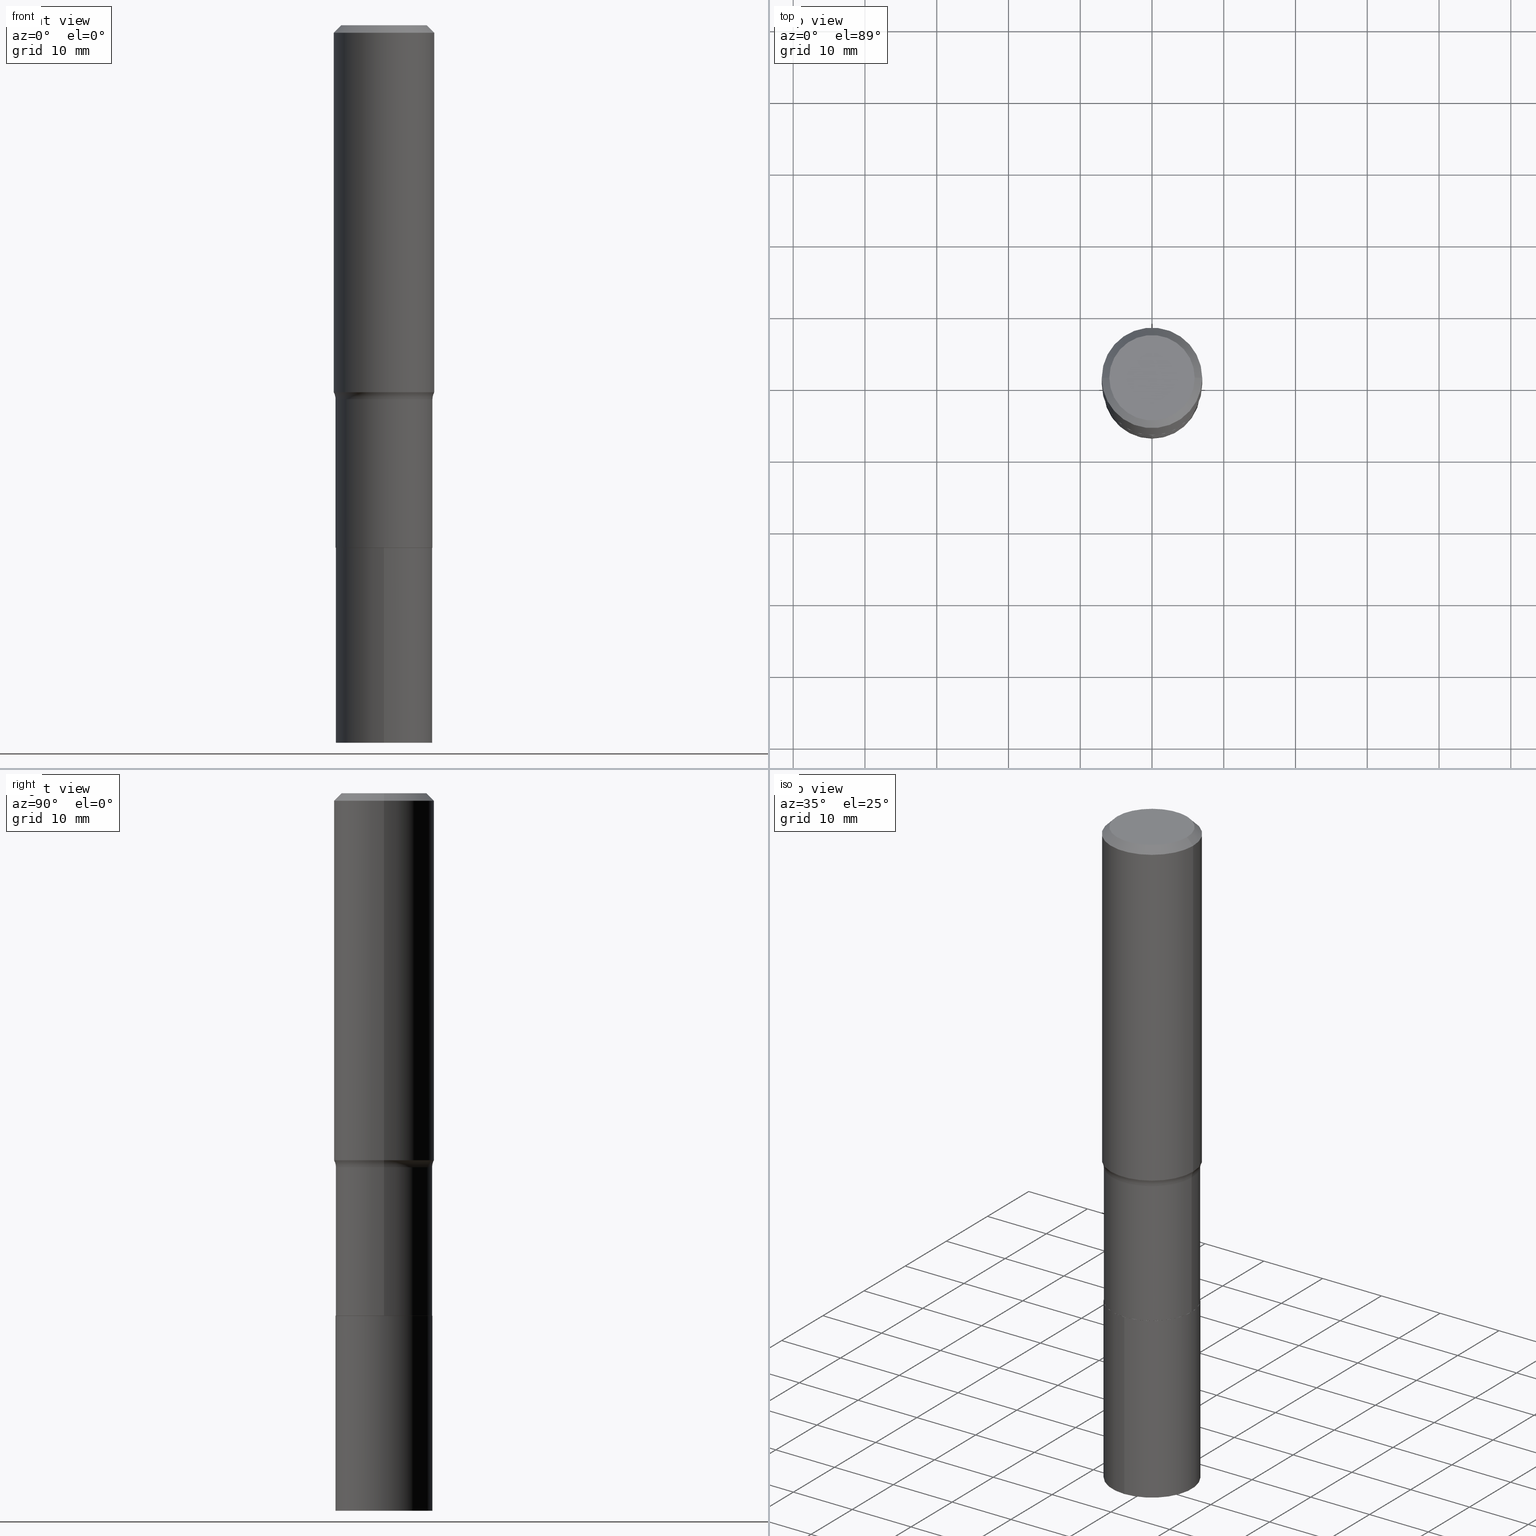
[diagram: canonical four-view strip — front | top / right | iso, engineering-drawing reading convention]
A machine part, canonical four-view strip (front | top / right | iso — engineering-drawing reading convention). The complete STEP part file that produces these views, byte-faithful:
ISO-10303-21;
HEADER;
FILE_DESCRIPTION (( 'STEP AP203' ),
    '1' );
FILE_NAME ('67171.STEP',
    '2024-04-19T16:08:07',
    ( '' ),
    ( '' ),
    'SwSTEP 2.0',
    'SolidWorks 2023',
    '' );
FILE_SCHEMA (( 'CONFIG_CONTROL_DESIGN' ));
ENDSEC;

DATA;
#1 = DIRECTION ( 'NONE',  ( -2.445918634677029817E-29, 3.490837158840106118E-15, 1.000000000000000000 ) ) ;
#2 = DATE_AND_TIME ( #396, #314 ) ;
#3 = ADVANCED_FACE ( 'NONE', ( #160 ), #353, .T. ) ;
#4 = CIRCLE ( 'NONE', #113, 0.2342600000000000238 ) ;
#5 = EDGE_LOOP ( 'NONE', ( #92, #296, #54, #59 ) ) ;
#6 = DIRECTION ( 'NONE',  ( -6.982962677686266711E-15, -1.000000000000000000, 4.111906669673397387E-15 ) ) ;
#7 = VERTEX_POINT ( 'NONE', #83 ) ;
#8 = ADVANCED_FACE ( 'NONE', ( #269 ), #318, .F. ) ;
#9 =( CONVERSION_BASED_UNIT ( 'INCH', #338 ) LENGTH_UNIT ( ) NAMED_UNIT ( #93 ) );
#10 = COORDINATED_UNIVERSAL_TIME_OFFSET ( 5, 0, .BEHIND. ) ;
#11 = CONICAL_SURFACE ( 'NONE', #313, 0.2652499999999999858, 0.7853981633967311859 ) ;
#12 = ORGANIZATION ( 'UNSPECIFIED', 'UNSPECIFIED', '' ) ;
#13 = DATE_AND_TIME ( #272, #211 ) ;
#14 = DIRECTION ( 'NONE',  ( 2.445468806185136597E-29, -3.491481338843145583E-15, -1.000000000000000000 ) ) ;
#15 = DIRECTION ( 'NONE',  ( 1.000000000000000000, -6.982962677686266711E-15, 0.000000000000000000 ) ) ;
#16 = ORIENTED_EDGE ( 'NONE', *, *, #213, .T. ) ;
#17 = CARTESIAN_POINT ( 'NONE',  ( 0.000000000000000000, 0.000000000000000000, 0.000000000000000000 ) ) ;
#18 = ORIENTED_EDGE ( 'NONE', *, *, #323, .T. ) ;
#19 = AXIS2_PLACEMENT_3D ( 'NONE', #61, #66, #203 ) ;
#20 = CC_DESIGN_APPROVAL ( #38, ( #41 ) ) ;
#21 = APPLICATION_PROTOCOL_DEFINITION ( 'international standard', 'config_control_design', 1994, #117 ) ;
#22 = CARTESIAN_POINT ( 'NONE',  ( -0.2756000000000002892, -5.073037810357367887E-15, -2.013842523483722502 ) ) ;
#23 = DIRECTION ( 'NONE',  ( -2.445468806185136597E-29, 3.491481338843145583E-15, 1.000000000000000000 ) ) ;
#24 = EDGE_CURVE ( 'NONE', #280, #145, #406, .T. ) ;
#25 = PLANE ( 'NONE',  #165 ) ;
#26 = CARTESIAN_POINT ( 'NONE',  ( -5.014852121625167883E-47, 7.159879756154482429E-33, 2.050671065172242981E-18 ) ) ;
#27 = DIRECTION ( 'NONE',  ( -2.445468806185136597E-29, 3.491481338843145583E-15, 1.000000000000000000 ) ) ;
#28 = DIRECTION ( 'NONE',  ( -2.445468806185136597E-29, 3.491481338843145583E-15, 1.000000000000000000 ) ) ;
#29 = AXIS2_PLACEMENT_3D ( 'NONE', #397, #76, #401 ) ;
#30 = CYLINDRICAL_SURFACE ( 'NONE', #19, 0.2657499999999999862 ) ;
#31 = ADVANCED_FACE ( 'NONE', ( #320 ), #294, .T. ) ;
#32 = DIRECTION ( 'NONE',  ( -2.445468806185136597E-29, 3.491481338843145583E-15, 1.000000000000000000 ) ) ;
#33 = CC_DESIGN_PERSON_AND_ORGANIZATION_ASSIGNMENT ( #400, #291, ( #41 ) ) ;
#34 = PERSON_AND_ORGANIZATION ( #277, #12 ) ;
#35 = AXIS2_PLACEMENT_3D ( 'NONE', #329, #133, #167 ) ;
#36 = CARTESIAN_POINT ( 'NONE',  ( -1.002970424325033577E-46, 1.431975951230896486E-32, 4.101342130344485961E-18 ) ) ;
#37 = ADVANCED_FACE ( 'NONE', ( #385 ), #202, .T. ) ;
#38 = APPROVAL ( #177, 'UNSPECIFIED' ) ;
#39 = VERTEX_POINT ( 'NONE', #462 ) ;
#40 = AXIS2_PLACEMENT_3D ( 'NONE', #357, #28, #324 ) ;
#41 = PRODUCT_DEFINITION_FORMATION_WITH_SPECIFIED_SOURCE ( 'ANY', '', #283, .NOT_KNOWN. ) ;
#42 = EDGE_CURVE ( 'NONE', #86, #45, #431, .T. ) ;
#43 = ORIENTED_EDGE ( 'NONE', *, *, #94, .F. ) ;
#44 = EDGE_LOOP ( 'NONE', ( #335, #438 ) ) ;
#45 = VERTEX_POINT ( 'NONE', #204 ) ;
#46 = EDGE_LOOP ( 'NONE', ( #452, #74 ) ) ;
#47 = VECTOR ( 'NONE', #281, 39.37007874015748143 ) ;
#48 = APPROVAL_PERSON_ORGANIZATION ( #182, #38, #439 ) ;
#49 = CARTESIAN_POINT ( 'NONE',  ( 7.008713598526600652E-29, -1.000658551712445604E-14, -2.866000000000000103 ) ) ;
#50 = VERTEX_POINT ( 'NONE', #360 ) ;
#51 = CARTESIAN_POINT ( 'NONE',  ( 0.2342600000000000238, -1.821115673845785155E-15, 4.101342130356573868E-18 ) ) ;
#52 = ORIENTED_EDGE ( 'NONE', *, *, #102, .T. ) ;
#53 = CYLINDRICAL_SURFACE ( 'NONE', #130, 0.2756000000000001227 ) ;
#54 = ORIENTED_EDGE ( 'NONE', *, *, #343, .T. ) ;
#55 = AXIS2_PLACEMENT_3D ( 'NONE', #359, #361, #248 ) ;
#56 = CARTESIAN_POINT ( 'NONE',  ( 0.2652499999999999858, -1.185881636738073996E-14, -2.866000000000000547 ) ) ;
#57 = VERTEX_POINT ( 'NONE', #147 ) ;
#58 = FACE_OUTER_BOUND ( 'NONE', #271, .T. ) ;
#59 = ORIENTED_EDGE ( 'NONE', *, *, #162, .T. ) ;
#60 = EDGE_CURVE ( 'NONE', #57, #216, #98, .T. ) ;
#61 = CARTESIAN_POINT ( 'NONE',  ( 7.008713598526600652E-29, -1.000658551712445604E-14, -2.866000000000000103 ) ) ;
#62 = CIRCLE ( 'NONE', #434, 0.2657499999999999862 ) ;
#63 = DIRECTION ( 'NONE',  ( 1.000000000000000000, -6.982962677686268288E-15, 4.883557194083113462E-29 ) ) ;
#64 = DATE_TIME_ROLE ( 'classification_date' ) ;
#65 = LINE ( 'NONE', #428, #441 ) ;
#66 = DIRECTION ( 'NONE',  ( -2.445918634677030097E-29, 3.490837158840106118E-15, 1.000000000000000000 ) ) ;
#67 = AXIS2_PLACEMENT_3D ( 'NONE', #447, #23, #157 ) ;
#68 = CARTESIAN_POINT ( 'NONE',  ( 7.008713598526602894E-29, -1.000658551712445762E-14, -2.866000000000000547 ) ) ;
#69 = PRODUCT_RELATED_PRODUCT_CATEGORY ( 'detail', '', ( #283 ) ) ;
#70 = PERSON_AND_ORGANIZATION_ROLE ( 'creator' ) ;
#71 = ORIENTED_EDGE ( 'NONE', *, *, #116, .T. ) ;
#72 = APPLICATION_PROTOCOL_DEFINITION ( 'international standard', 'config_control_design', 1994, #180 ) ;
#73 = ADVANCED_FACE ( 'NONE', ( #300 ), #154, .T. ) ;
#74 = ORIENTED_EDGE ( 'NONE', *, *, #334, .T. ) ;
#75 = APPROVAL_DATE_TIME ( #2, #38 ) ;
#76 = DIRECTION ( 'NONE',  ( -2.445468806185136597E-29, 3.491481338843145583E-15, 1.000000000000000000 ) ) ;
#77 = CIRCLE ( 'NONE', #287, 0.2657499999999999862 ) ;
#78 = EDGE_LOOP ( 'NONE', ( #230, #18, #254, #192 ) ) ;
#79 = ORIENTED_EDGE ( 'NONE', *, *, #24, .F. ) ;
#80 = DIRECTION ( 'NONE',  ( -1.000000000000000000, 6.982962677686267499E-15, 0.000000000000000000 ) ) ;
#81 = VECTOR ( 'NONE', #201, 39.37007874015748143 ) ;
#82 = VERTEX_POINT ( 'NONE', #51 ) ;
#83 = CARTESIAN_POINT ( 'NONE',  ( 0.2652499999999999858, -1.185881636738073996E-14, -2.866000000000000547 ) ) ;
#84 = EDGE_CURVE ( 'NONE', #164, #86, #270, .T. ) ;
#85 = DIRECTION ( 'NONE',  ( -2.445468806185136597E-29, 3.491481338843145583E-15, 1.000000000000000000 ) ) ;
#86 = VERTEX_POINT ( 'NONE', #374 ) ;
#87 = CARTESIAN_POINT ( 'NONE',  ( -0.2756000000000000116, -1.629559934575154235E-15, -0.04134000000000025848 ) ) ;
#88 = VERTEX_POINT ( 'NONE', #87 ) ;
#89 = CLOSED_SHELL ( 'NONE', ( #257, #176, #297, #240, #37, #3, #217, #152, #31, #8, #123, #73 ) ) ;
#90 = AXIS2_PLACEMENT_3D ( 'NONE', #457, #410, #228 ) ;
#91 = DIRECTION ( 'NONE',  ( 0.7071067811860403118, -2.468850131076945266E-15, 0.7071067811870545006 ) ) ;
#92 = ORIENTED_EDGE ( 'NONE', *, *, #349, .F. ) ;
#93 = DIMENSIONAL_EXPONENTS ( 1.000000000000000000, 0.000000000000000000, 0.000000000000000000, 0.000000000000000000, 0.000000000000000000, 0.000000000000000000, 0.000000000000000000 ) ;
#94 = EDGE_CURVE ( 'NONE', #7, #119, #191, .T. ) ;
#95 = CARTESIAN_POINT ( 'NONE',  ( 9.628292456265704301E-29, -1.374527211424221215E-14, -3.937000000000001165 ) ) ;
#96 = DIRECTION ( 'NONE',  ( -6.982962677686266711E-15, -1.000000000000000000, 4.111906669673397387E-15 ) ) ;
#97 = DIRECTION ( 'NONE',  ( 1.000000000000000000, -6.982962677686265922E-15, 0.000000000000000000 ) ) ;
#98 = CIRCLE ( 'NONE', #368, 0.2756000000000002892 ) ;
#99 = SECURITY_CLASSIFICATION ( '', '', #430 ) ;
#100 = DIRECTION ( 'NONE',  ( -2.445468806185136597E-29, 3.491481338843145583E-15, 1.000000000000000000 ) ) ;
#101 = CYLINDRICAL_SURFACE ( 'NONE', #426, 0.2756000000000001227 ) ;
#102 = EDGE_CURVE ( 'NONE', #45, #86, #62, .T. ) ;
#103 = DIRECTION ( 'NONE',  ( -2.445468806185136877E-29, 3.491481338843145188E-15, 1.000000000000000000 ) ) ;
#104 = MANIFOLD_SOLID_BREP ( 'Body-Move/Copy2[1]', #105 ) ;
#105 = CLOSED_SHELL ( 'NONE', ( #307, #273, #409, #200 ) ) ;
#106 = CIRCLE ( 'NONE', #369, 0.2756000000000000116 ) ;
#107 =( GEOMETRIC_REPRESENTATION_CONTEXT ( 3 ) GLOBAL_UNCERTAINTY_ASSIGNED_CONTEXT ( ( #311 ) ) GLOBAL_UNIT_ASSIGNED_CONTEXT ( ( #9, #178, #144 ) ) REPRESENTATION_CONTEXT ( 'NONE', 'WORKASPACE' ) );
#108 = EDGE_CURVE ( 'NONE', #280, #7, #432, .T. ) ;
#109 = ORIENTED_EDGE ( 'NONE', *, *, #372, .F. ) ;
#110 = CC_DESIGN_PERSON_AND_ORGANIZATION_ASSIGNMENT ( #34, #70, ( #394 ) ) ;
#111 = CARTESIAN_POINT ( 'NONE',  ( 7.008713598526600652E-29, -1.000658551712445604E-14, -2.866000000000000103 ) ) ;
#112 = ORIENTED_EDGE ( 'NONE', *, *, #456, .F. ) ;
#113 = AXIS2_PLACEMENT_3D ( 'NONE', #36, #390, #206 ) ;
#114 = CC_DESIGN_APPROVAL ( #173, ( #394 ) ) ;
#115 = ORIENTED_EDGE ( 'NONE', *, *, #363, .T. ) ;
#116 = EDGE_CURVE ( 'NONE', #57, #50, #278, .T. ) ;
#117 = APPLICATION_CONTEXT ( 'configuration controlled 3d designs of mechanical parts and assemblies' ) ;
#118 = DIRECTION ( 'NONE',  ( -2.445468806185136597E-29, 3.491481338843145583E-15, 1.000000000000000000 ) ) ;
#119 = VERTEX_POINT ( 'NONE', #148 ) ;
#120 = CARTESIAN_POINT ( 'NONE',  ( 0.000000000000000000, 0.000000000000000000, 0.000000000000000000 ) ) ;
#121 = DIRECTION ( 'NONE',  ( -2.445468806185136597E-29, 3.491481338843145583E-15, 1.000000000000000000 ) ) ;
#122 = ORIENTED_EDGE ( 'NONE', *, *, #244, .T. ) ;
#123 = ADVANCED_FACE ( 'NONE', ( #128 ), #25, .F. ) ;
#124 = CARTESIAN_POINT ( 'NONE',  ( 0.2756000000000001227, -1.924504513970336137E-15, 1.343874319409360548E-29 ) ) ;
#125 = EDGE_LOOP ( 'NONE', ( #455, #440, #151, #43 ) ) ;
#126 = FACE_OUTER_BOUND ( 'NONE', #5, .T. ) ;
#127 = DIRECTION ( 'NONE',  ( 2.438088387897960049E-29, -3.491481338843145188E-15, -1.000000000000000000 ) ) ;
#128 = FACE_OUTER_BOUND ( 'NONE', #44, .T. ) ;
#129 = DIRECTION ( 'NONE',  ( -1.000000000000000000, 6.982962677686267499E-15, 0.000000000000000000 ) ) ;
#130 = AXIS2_PLACEMENT_3D ( 'NONE', #17, #274, #415 ) ;
#131 = CARTESIAN_POINT ( 'NONE',  ( -0.2756000000000001227, 1.958255779754836984E-15, -1.355658510874252567E-29 ) ) ;
#132 = ORIENTED_EDGE ( 'NONE', *, *, #84, .F. ) ;
#133 = DIRECTION ( 'NONE',  ( 7.105427357601001859E-15, 1.000000000000000000, -3.491481338843145583E-15 ) ) ;
#134 = FACE_OUTER_BOUND ( 'NONE', #339, .T. ) ;
#135 = APPROVAL_STATUS ( 'not_yet_approved' ) ;
#136 = AXIS2_PLACEMENT_3D ( 'NONE', #317, #454, #63 ) ;
#137 = FACE_OUTER_BOUND ( 'NONE', #78, .T. ) ;
#138 = DIRECTION ( 'NONE',  ( 1.000000000000000000, -6.982962677686267499E-15, 4.876176775795935793E-29 ) ) ;
#139 = CARTESIAN_POINT ( 'NONE',  ( 4.924789071748601638E-29, -7.031293590112206054E-15, -2.013842523483722502 ) ) ;
#140 = VECTOR ( 'NONE', #234, 39.37007874015748143 ) ;
#141 = VERTEX_POINT ( 'NONE', #443 ) ;
#142 = DIRECTION ( 'NONE',  ( -2.445468806185136597E-29, 3.491481338843145583E-15, 1.000000000000000000 ) ) ;
#143 = EDGE_LOOP ( 'NONE', ( #215, #122, #308, #109 ) ) ;
#144 =( NAMED_UNIT ( * ) SI_UNIT ( $, .STERADIAN. ) SOLID_ANGLE_UNIT ( ) );
#145 = VERTEX_POINT ( 'NONE', #197 ) ;
#146 = EDGE_CURVE ( 'NONE', #119, #145, #77, .T. ) ;
#147 = CARTESIAN_POINT ( 'NONE',  ( 0.2756000000000002892, -8.955798104082544164E-15, -2.013842523483722502 ) ) ;
#148 = CARTESIAN_POINT ( 'NONE',  ( 0.2657499999999999862, -1.186056210805015752E-14, -2.865499999999999936 ) ) ;
#149 = ORIENTED_EDGE ( 'NONE', *, *, #251, .T. ) ;
#150 = DIRECTION ( 'NONE',  ( 1.000000000000000000, -6.982962677686265922E-15, 0.000000000000000000 ) ) ;
#151 = ORIENTED_EDGE ( 'NONE', *, *, #146, .F. ) ;
#152 = ADVANCED_FACE ( 'NONE', ( #421 ), #53, .T. ) ;
#153 = CARTESIAN_POINT ( 'NONE',  ( 5.018835630933755677E-29, -7.165567151707788327E-15, -2.052300000000000235 ) ) ;
#154 = CONICAL_SURFACE ( 'NONE', #266, 0.2652499999999999858, 0.7853981633967311859 ) ;
#155 = EDGE_LOOP ( 'NONE', ( #444, #403, #71, #112 ) ) ;
#156 = CARTESIAN_POINT ( 'NONE',  ( 4.924789071748601638E-29, -7.031293590112206054E-15, -2.013842523483722502 ) ) ;
#157 = DIRECTION ( 'NONE',  ( 1.000000000000000000, -6.982962677686265133E-15, 4.876176775795935232E-29 ) ) ;
#158 = CALENDAR_DATE ( 2024, 19, 4 ) ;
#159 = CARTESIAN_POINT ( 'NONE',  ( 7.008713598526602894E-29, -1.000658551712445762E-14, -2.866000000000000547 ) ) ;
#160 = FACE_OUTER_BOUND ( 'NONE', #275, .T. ) ;
#161 = DATE_AND_TIME ( #158, #205 ) ;
#162 = EDGE_CURVE ( 'NONE', #383, #436, #365, .T. ) ;
#163 = DIRECTION ( 'NONE',  ( 1.000000000000000000, -6.982962677686268288E-15, 4.883557194083113462E-29 ) ) ;
#164 = VERTEX_POINT ( 'NONE', #309 ) ;
#165 = AXIS2_PLACEMENT_3D ( 'NONE', #345, #241, #306 ) ;
#166 = COORDINATED_UNIVERSAL_TIME_OFFSET ( 5, 0, .BEHIND. ) ;
#167 = DIRECTION ( 'NONE',  ( -1.000000000000000000, 7.105427357601001859E-15, 0.000000000000000000 ) ) ;
#168 = PLANE ( 'NONE',  #408 ) ;
#169 = EDGE_CURVE ( 'NONE', #7, #280, #226, .T. ) ;
#170 = CALENDAR_DATE ( 2024, 19, 4 ) ;
#171 = CARTESIAN_POINT ( 'NONE',  ( -1.676611901339251534E-29, -2.993453858952963393E-14, -3.937000000000000721 ) ) ;
#172 = AXIS2_PLACEMENT_3D ( 'NONE', #362, #209, #391 ) ;
#173 = APPROVAL ( #233, 'UNSPECIFIED' ) ;
#174 = CIRCLE ( 'NONE', #29, 0.2756000000000000116 ) ;
#175 = CARTESIAN_POINT ( 'NONE',  ( 0.000000000000000000, 0.000000000000000000, 0.000000000000000000 ) ) ;
#176 = ADVANCED_FACE ( 'NONE', ( #58 ), #393, .T. ) ;
#177 = APPROVAL_STATUS ( 'not_yet_approved' ) ;
#178 =( NAMED_UNIT ( * ) PLANE_ANGLE_UNIT ( ) SI_UNIT ( $, .RADIAN. ) );
#179 = ORIENTED_EDGE ( 'NONE', *, *, #343, .F. ) ;
#180 = APPLICATION_CONTEXT ( 'configuration controlled 3d designs of mechanical parts and assemblies' ) ;
#181 = TOROIDAL_SURFACE ( 'NONE', #136, 0.3457499999999999463, 0.08000000000000002942 ) ;
#182 = PERSON_AND_ORGANIZATION ( #277, #12 ) ;
#183 = DIRECTION ( 'NONE',  ( -2.445918634677030097E-29, 3.490837158840106118E-15, 1.000000000000000000 ) ) ;
#184 = CARTESIAN_POINT ( 'NONE',  ( -0.2657499999999998752, -6.696936143798944498E-15, -2.052300000000000235 ) ) ;
#185 = ORIENTED_EDGE ( 'NONE', *, *, #402, .F. ) ;
#186 = AXIS2_PLACEMENT_3D ( 'NONE', #153, #85, #15 ) ;
#187 = EDGE_LOOP ( 'NONE', ( #422, #185 ) ) ;
#188 = EDGE_CURVE ( 'NONE', #39, #88, #315, .T. ) ;
#189 = CARTESIAN_POINT ( 'NONE',  ( 7.007490864123507851E-29, -1.000483977645503375E-14, -2.865499999999999936 ) ) ;
#190 = DIRECTION ( 'NONE',  ( 2.445468806185136597E-29, -3.491481338843145583E-15, -1.000000000000000000 ) ) ;
#191 = LINE ( 'NONE', #56, #341 ) ;
#192 = ORIENTED_EDGE ( 'NONE', *, *, #116, .F. ) ;
#193 = APPROVAL_ROLE ( '' ) ;
#194 = DIRECTION ( 'NONE',  ( -2.445468806185136597E-29, 3.491481338843145583E-15, 1.000000000000000000 ) ) ;
#195 = AXIS2_PLACEMENT_3D ( 'NONE', #156, #327, #364 ) ;
#196 = ORIENTED_EDGE ( 'NONE', *, *, #456, .T. ) ;
#197 = CARTESIAN_POINT ( 'NONE',  ( -0.2657500000000000417, -6.696936143798942920E-15, -2.865499999999999936 ) ) ;
#198 = ORIENTED_EDGE ( 'NONE', *, *, #188, .F. ) ;
#199 = PERSON_AND_ORGANIZATION_ROLE ( 'classification_officer' ) ;
#200 = ADVANCED_FACE ( 'NONE', ( #382 ), #379, .F. ) ;
#201 = DIRECTION ( 'NONE',  ( -2.445468806185136877E-29, 3.491481338843145188E-15, 1.000000000000000000 ) ) ;
#202 = CYLINDRICAL_SURFACE ( 'NONE', #40, 0.2657499999999999862 ) ;
#203 = DIRECTION ( 'NONE',  ( -6.982962677686266711E-15, -1.000000000000000000, 4.111906669673397387E-15 ) ) ;
#204 = CARTESIAN_POINT ( 'NONE',  ( 1.888267320282562387E-15, 0.2657499999999899942, -2.866000000000000991 ) ) ;
#205 = LOCAL_TIME ( 12, 8, 7.000000000000000000, #166 ) ;
#206 = DIRECTION ( 'NONE',  ( 1.000000000000000000, -6.982962677686267499E-15, 4.876157962347795834E-29 ) ) ;
#207 = DIRECTION ( 'NONE',  ( -2.445468806185136597E-29, 3.491481338843145583E-15, 1.000000000000000000 ) ) ;
#208 = SHAPE_DEFINITION_REPRESENTATION ( #414, #302 ) ;
#209 = DIRECTION ( 'NONE',  ( -6.982962677686266711E-15, -1.000000000000000000, 3.491481338843145583E-15 ) ) ;
#210 = CIRCLE ( 'NONE', #351, 0.2657499999999999862 ) ;
#211 = LOCAL_TIME ( 12, 8, 7.000000000000000000, #453 ) ;
#212 = DIRECTION ( 'NONE',  ( -6.982962677686266711E-15, -1.000000000000000000, 4.111906669673397387E-15 ) ) ;
#213 = EDGE_CURVE ( 'NONE', #145, #119, #210, .T. ) ;
#214 = CYLINDRICAL_SURFACE ( 'NONE', #295, 0.2657499999999999862 ) ;
#215 = ORIENTED_EDGE ( 'NONE', *, *, #146, .T. ) ;
#216 = VERTEX_POINT ( 'NONE', #22 ) ;
#217 = ADVANCED_FACE ( 'NONE', ( #126 ), #181, .F. ) ;
#218 = PERSON_AND_ORGANIZATION_ROLE ( 'creator' ) ;
#219 = FACE_OUTER_BOUND ( 'NONE', #398, .T. ) ;
#220 = ORIENTED_EDGE ( 'NONE', *, *, #349, .T. ) ;
#221 = CC_DESIGN_DATE_AND_TIME_ASSIGNMENT ( #298, #255, ( #394 ) ) ;
#222 = DIRECTION ( 'NONE',  ( 0.000000000000000000, 0.000000000000000000, 1.000000000000000000 ) ) ;
#223 = DESIGN_CONTEXT ( 'detailed design', #117, 'design' ) ;
#224 = EDGE_CURVE ( 'NONE', #216, #57, #449, .T. ) ;
#225 = DIRECTION ( 'NONE',  ( 1.000000000000000000, 0.000000000000000000, 0.000000000000000000 ) ) ;
#226 = CIRCLE ( 'NONE', #388, 0.2652499999999999858 ) ;
#227 = LOCAL_TIME ( 12, 8, 7.000000000000000000, #288 ) ;
#228 = DIRECTION ( 'NONE',  ( 6.982962677686265922E-15, 1.000000000000000000, -3.490837158840106118E-15 ) ) ;
#229 = APPROVAL_PERSON_ORGANIZATION ( #412, #173, #193 ) ;
#230 = ORIENTED_EDGE ( 'NONE', *, *, #60, .T. ) ;
#231 = CARTESIAN_POINT ( 'NONE',  ( -1.855722331595055138E-15, -0.2657500000000099782, -2.865999999999998771 ) ) ;
#232 = ORIENTED_EDGE ( 'NONE', *, *, #108, .T. ) ;
#233 = APPROVAL_STATUS ( 'not_yet_approved' ) ;
#234 = DIRECTION ( 'NONE',  ( -0.7071067811865452413, 2.468850131082233000E-15, -0.7071067811865497932 ) ) ;
#235 = ORIENTED_EDGE ( 'NONE', *, *, #425, .T. ) ;
#236 = DIRECTION ( 'NONE',  ( -2.445918634677030097E-29, 3.490837158840106118E-15, 1.000000000000000000 ) ) ;
#237 = CIRCLE ( 'NONE', #35, 0.08000000000000002942 ) ;
#238 = DIRECTION ( 'NONE',  ( -0.7071067811860403118, 7.493145998868519270E-15, 0.7071067811870545006 ) ) ;
#239 = CC_DESIGN_SECURITY_CLASSIFICATION ( #99, ( #41 ) ) ;
#240 = ADVANCED_FACE ( 'NONE', ( #427 ), #328, .F. ) ;
#241 = DIRECTION ( 'NONE',  ( -2.438088387897960049E-29, 3.491481338843145188E-15, 1.000000000000000000 ) ) ;
#242 = EDGE_LOOP ( 'NONE', ( #395, #404, #442, #196 ) ) ;
#243 = CARTESIAN_POINT ( 'NONE',  ( 5.018835630933755677E-29, -7.165567151707788327E-15, -2.052300000000000235 ) ) ;
#244 = EDGE_CURVE ( 'NONE', #145, #436, #65, .T. ) ;
#245 = DIRECTION ( 'NONE',  ( -2.445918634677029817E-29, 3.490837158840106118E-15, 1.000000000000000000 ) ) ;
#246 = AXIS2_PLACEMENT_3D ( 'NONE', #243, #27, #463 ) ;
#247 = CIRCLE ( 'NONE', #399, 0.2657499999999999862 ) ;
#248 = DIRECTION ( 'NONE',  ( 1.000000000000000000, -6.982962677686267499E-15, 4.876157962347795834E-29 ) ) ;
#249 = LINE ( 'NONE', #131, #467 ) ;
#250 = LINE ( 'NONE', #392, #47 ) ;
#251 = EDGE_CURVE ( 'NONE', #436, #383, #459, .T. ) ;
#252 = VECTOR ( 'NONE', #103, 39.37007874015748143 ) ;
#253 = CARTESIAN_POINT ( 'NONE',  ( 7.008713598526602894E-29, -1.000658551712445762E-14, -2.866000000000000547 ) ) ;
#254 = ORIENTED_EDGE ( 'NONE', *, *, #293, .F. ) ;
#255 = DATE_TIME_ROLE ( 'creation_date' ) ;
#256 = CARTESIAN_POINT ( 'NONE',  ( 9.628292456265704301E-29, -1.374527211424221215E-14, -3.937000000000001165 ) ) ;
#257 = ADVANCED_FACE ( 'NONE', ( #387 ), #11, .T. ) ;
#258 = ORIENTED_EDGE ( 'NONE', *, *, #293, .T. ) ;
#259 = PERSON_AND_ORGANIZATION ( #277, #12 ) ;
#260 = CIRCLE ( 'NONE', #55, 0.2342600000000000238 ) ;
#261 =( LENGTH_UNIT ( ) NAMED_UNIT ( * ) SI_UNIT ( $, .METRE. ) );
#262 = ORIENTED_EDGE ( 'NONE', *, *, #42, .F. ) ;
#263 = MANIFOLD_SOLID_BREP ( 'Body-Move/Copy2[2]', #89 ) ;
#264 = CARTESIAN_POINT ( 'NONE',  ( 7.008713598526602894E-29, -1.000658551712445762E-14, -2.866000000000000547 ) ) ;
#265 = ORIENTED_EDGE ( 'NONE', *, *, #224, .F. ) ;
#266 = AXIS2_PLACEMENT_3D ( 'NONE', #253, #347, #319 ) ;
#267 = CC_DESIGN_APPROVAL ( #413, ( #99 ) ) ;
#268 = CARTESIAN_POINT ( 'NONE',  ( 1.010956804476941872E-30, -1.443378385477765316E-16, -0.04134000000000025848 ) ) ;
#269 = FACE_OUTER_BOUND ( 'NONE', #46, .T. ) ;
#270 = LINE ( 'NONE', #231, #303 ) ;
#271 = EDGE_LOOP ( 'NONE', ( #348, #371, #258, #198 ) ) ;
#272 = CALENDAR_DATE ( 2024, 19, 4 ) ;
#273 = ADVANCED_FACE ( 'NONE', ( #321 ), #168, .F. ) ;
#274 = DIRECTION ( 'NONE',  ( -2.445468806185136597E-29, 3.491481338843145583E-15, 1.000000000000000000 ) ) ;
#275 = EDGE_LOOP ( 'NONE', ( #355, #16, #344, #337 ) ) ;
#276 = DATE_AND_TIME ( #170, #227 ) ;
#277 = PERSON ( 'UNSPECIFIED', 'UNSPECIFIED', 'UNSPECIFIED', ('UNSPECIFIED'), ('UNSPECIFIED'), ('UNSPECIFIED') ) ;
#278 = LINE ( 'NONE', #124, #81 ) ;
#279 = AXIS2_PLACEMENT_3D ( 'NONE', #264, #121, #384 ) ;
#280 = VERTEX_POINT ( 'NONE', #389 ) ;
#281 = DIRECTION ( 'NONE',  ( 0.7071067811865452413, -7.319954787623248157E-15, -0.7071067811865497932 ) ) ;
#282 = EDGE_CURVE ( 'NONE', #39, #82, #4, .T. ) ;
#283 = PRODUCT ( '67171', '67171', '', ( #445 ) ) ;
#284 = APPROVAL_DATE_TIME ( #276, #413 ) ;
#285 = CARTESIAN_POINT ( 'NONE',  ( 1.888267320282535960E-15, 0.2657499999999899942, -2.866000000000000991 ) ) ;
#286 = DIRECTION ( 'NONE',  ( -2.445468806185136877E-29, 3.491481338843145188E-15, 1.000000000000000000 ) ) ;
#287 = AXIS2_PLACEMENT_3D ( 'NONE', #354, #418, #377 ) ;
#288 = COORDINATED_UNIVERSAL_TIME_OFFSET ( 5, 0, .BEHIND. ) ;
#289 = DIRECTION ( 'NONE',  ( 1.000000000000000000, -6.982962677686267499E-15, 0.000000000000000000 ) ) ;
#290 = DIRECTION ( 'NONE',  ( -2.445918634677030097E-29, 3.490837158840106118E-15, 1.000000000000000000 ) ) ;
#291 = PERSON_AND_ORGANIZATION_ROLE ( 'design_supplier' ) ;
#292 = LINE ( 'NONE', #429, #252 ) ;
#293 = EDGE_CURVE ( 'NONE', #50, #88, #106, .T. ) ;
#294 = CONICAL_SURFACE ( 'NONE', #448, 0.2756000000000000116, 0.7853981633974450594 ) ;
#295 = AXIS2_PLACEMENT_3D ( 'NONE', #111, #435, #212 ) ;
#296 = ORIENTED_EDGE ( 'NONE', *, *, #60, .F. ) ;
#297 = ADVANCED_FACE ( 'NONE', ( #137 ), #101, .T. ) ;
#298 = DATE_AND_TIME ( #330, #304 ) ;
#299 = ORIENTED_EDGE ( 'NONE', *, *, #102, .F. ) ;
#300 = FACE_OUTER_BOUND ( 'NONE', #301, .T. ) ;
#301 = EDGE_LOOP ( 'NONE', ( #79, #232, #416, #310 ) ) ;
#302 = ADVANCED_BREP_SHAPE_REPRESENTATION ( '67171', ( #104, #263, #450 ), #107 ) ;
#303 = VECTOR ( 'NONE', #405, 39.37007874015748143 ) ;
#304 = LOCAL_TIME ( 12, 8, 7.000000000000000000, #333 ) ;
#305 = APPROVAL_DATE_TIME ( #13, #173 ) ;
#306 = DIRECTION ( 'NONE',  ( 1.000000000000000000, -6.982962677686265922E-15, 4.876176775795935793E-29 ) ) ;
#307 = ADVANCED_FACE ( 'NONE', ( #134 ), #30, .T. ) ;
#308 = ORIENTED_EDGE ( 'NONE', *, *, #162, .F. ) ;
#309 = CARTESIAN_POINT ( 'NONE',  ( -1.855722331595028711E-15, -0.2657500000000137530, -3.937000000000000277 ) ) ;
#310 = ORIENTED_EDGE ( 'NONE', *, *, #213, .F. ) ;
#311 = UNCERTAINTY_MEASURE_WITH_UNIT (LENGTH_MEASURE( 1.000000000000000082E-05 ), #9, 'distance_accuracy_value', 'NONE');
#312 = AXIS2_PLACEMENT_3D ( 'NONE', #332, #290, #96 ) ;
#313 = AXIS2_PLACEMENT_3D ( 'NONE', #68, #100, #97 ) ;
#314 = LOCAL_TIME ( 12, 8, 7.000000000000000000, #10 ) ;
#315 = LINE ( 'NONE', #451, #140 ) ;
#316 = ORIENTED_EDGE ( 'NONE', *, *, #402, .T. ) ;
#317 = CARTESIAN_POINT ( 'NONE',  ( 5.018835630933755677E-29, -7.165567151707788327E-15, -2.052300000000000235 ) ) ;
#318 = PLANE ( 'NONE',  #407 ) ;
#319 = DIRECTION ( 'NONE',  ( 1.000000000000000000, -6.982962677686265922E-15, 0.000000000000000000 ) ) ;
#320 = FACE_OUTER_BOUND ( 'NONE', #242, .T. ) ;
#321 = FACE_OUTER_BOUND ( 'NONE', #187, .T. ) ;
#322 = CIRCLE ( 'NONE', #373, 0.2657499999999999862 ) ;
#323 = EDGE_CURVE ( 'NONE', #216, #88, #249, .T. ) ;
#324 = DIRECTION ( 'NONE',  ( 1.000000000000000000, -6.982962677686265133E-15, 4.876176775795935232E-29 ) ) ;
#325 = APPROVAL_PERSON_ORGANIZATION ( #386, #413, #464 ) ;
#326 = CARTESIAN_POINT ( 'NONE',  ( 5.018835630933755677E-29, -7.165567151707788327E-15, -2.052300000000000235 ) ) ;
#327 = DIRECTION ( 'NONE',  ( -2.445468806185136597E-29, 3.491481338843145583E-15, 1.000000000000000000 ) ) ;
#328 = TOROIDAL_SURFACE ( 'NONE', #336, 0.3457499999999999463, 0.08000000000000002942 ) ;
#329 = CARTESIAN_POINT ( 'NONE',  ( -0.3457499999999999463, -4.708865642817241133E-15, -2.052300000000000235 ) ) ;
#330 = CALENDAR_DATE ( 2024, 19, 4 ) ;
#331 = CC_DESIGN_PERSON_AND_ORGANIZATION_ASSIGNMENT ( #417, #199, ( #99 ) ) ;
#332 = CARTESIAN_POINT ( 'NONE',  ( 7.008713598526600652E-29, -1.000658551712445604E-14, -2.866000000000000103 ) ) ;
#333 = COORDINATED_UNIVERSAL_TIME_OFFSET ( 5, 0, .BEHIND. ) ;
#334 = EDGE_CURVE ( 'NONE', #82, #39, #260, .T. ) ;
#335 = ORIENTED_EDGE ( 'NONE', *, *, #169, .F. ) ;
#336 = AXIS2_PLACEMENT_3D ( 'NONE', #326, #207, #163 ) ;
#337 = ORIENTED_EDGE ( 'NONE', *, *, #251, .F. ) ;
#338 = LENGTH_MEASURE_WITH_UNIT ( LENGTH_MEASURE( 0.02539999999999999897 ), #261 );
#339 = EDGE_LOOP ( 'NONE', ( #235, #115, #262, #132 ) ) ;
#340 = VECTOR ( 'NONE', #238, 39.37007874015748854 ) ;
#341 = VECTOR ( 'NONE', #91, 39.37007874015748854 ) ;
#342 = PERSON_AND_ORGANIZATION_ROLE ( 'design_owner' ) ;
#343 = EDGE_CURVE ( 'NONE', #57, #383, #381, .T. ) ;
#344 = ORIENTED_EDGE ( 'NONE', *, *, #372, .T. ) ;
#345 = CARTESIAN_POINT ( 'NONE',  ( 2.886342919033864303E-29, -1.591005496092598834E-14, -2.866000000000000547 ) ) ;
#346 = ORIENTED_EDGE ( 'NONE', *, *, #363, .F. ) ;
#347 = DIRECTION ( 'NONE',  ( -2.445468806185136597E-29, 3.491481338843145583E-15, 1.000000000000000000 ) ) ;
#348 = ORIENTED_EDGE ( 'NONE', *, *, #334, .F. ) ;
#349 = EDGE_CURVE ( 'NONE', #216, #436, #237, .T. ) ;
#350 = PERSON_AND_ORGANIZATION ( #277, #12 ) ;
#351 = AXIS2_PLACEMENT_3D ( 'NONE', #189, #194, #352 ) ;
#352 = DIRECTION ( 'NONE',  ( 1.000000000000000000, -6.982962677686264344E-15, 0.000000000000000000 ) ) ;
#353 = CYLINDRICAL_SURFACE ( 'NONE', #67, 0.2657499999999999862 ) ;
#354 = CARTESIAN_POINT ( 'NONE',  ( 7.007490864123507851E-29, -1.000483977645503375E-14, -2.865499999999999936 ) ) ;
#355 = ORIENTED_EDGE ( 'NONE', *, *, #244, .F. ) ;
#356 = LINE ( 'NONE', #285, #420 ) ;
#357 = CARTESIAN_POINT ( 'NONE',  ( 0.000000000000000000, 0.000000000000000000, 0.000000000000000000 ) ) ;
#358 = AXIS2_PLACEMENT_3D ( 'NONE', #268, #14, #80 ) ;
#359 = CARTESIAN_POINT ( 'NONE',  ( -1.002970424325033577E-46, 1.431975951230896486E-32, 4.101342130344485961E-18 ) ) ;
#360 = CARTESIAN_POINT ( 'NONE',  ( 0.2756000000000000116, -2.068842352518111732E-15, -0.04134000000000025848 ) ) ;
#361 = DIRECTION ( 'NONE',  ( -2.445468806185136597E-29, 3.491481338843145583E-15, 1.000000000000000000 ) ) ;
#362 = CARTESIAN_POINT ( 'NONE',  ( 0.3457499999999999463, -9.579926497517813749E-15, -2.052300000000000235 ) ) ;
#363 = EDGE_CURVE ( 'NONE', #141, #45, #356, .T. ) ;
#364 = DIRECTION ( 'NONE',  ( 1.000000000000000000, -6.982962677686270655E-15, 0.000000000000000000 ) ) ;
#365 = CIRCLE ( 'NONE', #186, 0.2657499999999998752 ) ;
#366 = CC_DESIGN_PERSON_AND_ORGANIZATION_ASSIGNMENT ( #350, #342, ( #283 ) ) ;
#367 = EDGE_LOOP ( 'NONE', ( #378, #52 ) ) ;
#368 = AXIS2_PLACEMENT_3D ( 'NONE', #139, #142, #433 ) ;
#369 = AXIS2_PLACEMENT_3D ( 'NONE', #460, #32, #289 ) ;
#370 = DIRECTION ( 'NONE',  ( -6.982962677686266711E-15, -1.000000000000000000, 4.111906669673397387E-15 ) ) ;
#371 = ORIENTED_EDGE ( 'NONE', *, *, #376, .T. ) ;
#372 = EDGE_CURVE ( 'NONE', #119, #383, #292, .T. ) ;
#373 = AXIS2_PLACEMENT_3D ( 'NONE', #95, #437, #6 ) ;
#374 = CARTESIAN_POINT ( 'NONE',  ( -1.855722331595055138E-15, -0.2657500000000099782, -2.865999999999998771 ) ) ;
#375 = EDGE_LOOP ( 'NONE', ( #265, #220, #149, #179 ) ) ;
#376 = EDGE_CURVE ( 'NONE', #82, #50, #250, .T. ) ;
#377 = DIRECTION ( 'NONE',  ( 1.000000000000000000, -6.982962677686264344E-15, 0.000000000000000000 ) ) ;
#378 = ORIENTED_EDGE ( 'NONE', *, *, #42, .T. ) ;
#379 = PLANE ( 'NONE',  #90 ) ;
#380 = ORIENTED_EDGE ( 'NONE', *, *, #84, .T. ) ;
#381 = CIRCLE ( 'NONE', #172, 0.08000000000000002942 ) ;
#382 = FACE_OUTER_BOUND ( 'NONE', #367, .T. ) ;
#383 = VERTEX_POINT ( 'NONE', #423 ) ;
#384 = DIRECTION ( 'NONE',  ( 1.000000000000000000, -6.982962677686265922E-15, 0.000000000000000000 ) ) ;
#385 = FACE_OUTER_BOUND ( 'NONE', #143, .T. ) ;
#386 = PERSON_AND_ORGANIZATION ( #277, #12 ) ;
#387 = FACE_OUTER_BOUND ( 'NONE', #125, .T. ) ;
#388 = AXIS2_PLACEMENT_3D ( 'NONE', #159, #118, #150 ) ;
#389 = CARTESIAN_POINT ( 'NONE',  ( -0.2652499999999999858, -8.119221683346678410E-15, -2.866000000000000547 ) ) ;
#390 = DIRECTION ( 'NONE',  ( -2.445468806185136597E-29, 3.491481338843145583E-15, 1.000000000000000000 ) ) ;
#391 = DIRECTION ( 'NONE',  ( 1.000000000000000000, -6.982962677686257244E-15, 0.000000000000000000 ) ) ;
#392 = CARTESIAN_POINT ( 'NONE',  ( 0.2756000000000000116, -2.035091086733610886E-15, -0.04134000000000025848 ) ) ;
#393 = CONICAL_SURFACE ( 'NONE', #358, 0.2756000000000000116, 0.7853981633974450594 ) ;
#394 = PRODUCT_DEFINITION ( 'UNKNOWN', '', #41, #223 ) ;
#395 = ORIENTED_EDGE ( 'NONE', *, *, #376, .F. ) ;
#396 = CALENDAR_DATE ( 2024, 19, 4 ) ;
#397 = CARTESIAN_POINT ( 'NONE',  ( 1.010956804476941872E-30, -1.443378385477765316E-16, -0.04134000000000025848 ) ) ;
#398 = EDGE_LOOP ( 'NONE', ( #346, #316, #380, #299 ) ) ;
#399 = AXIS2_PLACEMENT_3D ( 'NONE', #256, #183, #370 ) ;
#400 = PERSON_AND_ORGANIZATION ( #277, #12 ) ;
#401 = DIRECTION ( 'NONE',  ( 1.000000000000000000, -6.982962677686267499E-15, 0.000000000000000000 ) ) ;
#402 = EDGE_CURVE ( 'NONE', #141, #164, #322, .T. ) ;
#403 = ORIENTED_EDGE ( 'NONE', *, *, #224, .T. ) ;
#404 = ORIENTED_EDGE ( 'NONE', *, *, #282, .F. ) ;
#405 = DIRECTION ( 'NONE',  ( -2.445918634677029817E-29, 3.490837158840106118E-15, 1.000000000000000000 ) ) ;
#406 = LINE ( 'NONE', #419, #340 ) ;
#407 = AXIS2_PLACEMENT_3D ( 'NONE', #26, #127, #411 ) ;
#408 = AXIS2_PLACEMENT_3D ( 'NONE', #171, #245, #468 ) ;
#409 = ADVANCED_FACE ( 'NONE', ( #219 ), #214, .T. ) ;
#410 = DIRECTION ( 'NONE',  ( 2.445918634677029817E-29, -3.490837158840106118E-15, -1.000000000000000000 ) ) ;
#411 = DIRECTION ( 'NONE',  ( -1.000000000000000000, 6.982962677686265922E-15, -4.876176775795935793E-29 ) ) ;
#412 = PERSON_AND_ORGANIZATION ( #277, #12 ) ;
#413 = APPROVAL ( #135, 'UNSPECIFIED' ) ;
#414 = PRODUCT_DEFINITION_SHAPE ( 'NONE', 'NONE',  #394 ) ;
#415 = DIRECTION ( 'NONE',  ( 1.000000000000000000, -6.982962677686267499E-15, 4.876176775795935793E-29 ) ) ;
#416 = ORIENTED_EDGE ( 'NONE', *, *, #94, .T. ) ;
#417 = PERSON_AND_ORGANIZATION ( #277, #12 ) ;
#418 = DIRECTION ( 'NONE',  ( -2.445468806185136597E-29, 3.491481338843145583E-15, 1.000000000000000000 ) ) ;
#419 = CARTESIAN_POINT ( 'NONE',  ( -0.2652499999999999858, -8.121870910520791978E-15, -2.866000000000000547 ) ) ;
#420 = VECTOR ( 'NONE', #1, 39.37007874015748143 ) ;
#421 = FACE_OUTER_BOUND ( 'NONE', #155, .T. ) ;
#422 = ORIENTED_EDGE ( 'NONE', *, *, #425, .F. ) ;
#423 = CARTESIAN_POINT ( 'NONE',  ( 0.2657499999999998752, -9.021289483302912096E-15, -2.052300000000000235 ) ) ;
#424 = DIRECTION ( 'NONE',  ( -2.445468806185136877E-29, 3.491481338843145188E-15, 1.000000000000000000 ) ) ;
#425 = EDGE_CURVE ( 'NONE', #164, #141, #247, .T. ) ;
#426 = AXIS2_PLACEMENT_3D ( 'NONE', #175, #465, #138 ) ;
#427 = FACE_OUTER_BOUND ( 'NONE', #375, .T. ) ;
#428 = CARTESIAN_POINT ( 'NONE',  ( -0.2657499999999999862, 1.888267320282466146E-15, -1.307207000235240949E-29 ) ) ;
#429 = CARTESIAN_POINT ( 'NONE',  ( 0.2657499999999999862, -1.855722331595124952E-15, 1.295843978167769732E-29 ) ) ;
#430 = SECURITY_CLASSIFICATION_LEVEL ( 'unclassified' ) ;
#431 = CIRCLE ( 'NONE', #312, 0.2657499999999999862 ) ;
#432 = CIRCLE ( 'NONE', #279, 0.2652499999999999858 ) ;
#433 = DIRECTION ( 'NONE',  ( 1.000000000000000000, -6.982962677686270655E-15, 0.000000000000000000 ) ) ;
#434 = AXIS2_PLACEMENT_3D ( 'NONE', #49, #236, #446 ) ;
#435 = DIRECTION ( 'NONE',  ( -2.445918634677030097E-29, 3.490837158840106118E-15, 1.000000000000000000 ) ) ;
#436 = VERTEX_POINT ( 'NONE', #184 ) ;
#437 = DIRECTION ( 'NONE',  ( -2.445918634677030097E-29, 3.490837158840106118E-15, 1.000000000000000000 ) ) ;
#438 = ORIENTED_EDGE ( 'NONE', *, *, #108, .F. ) ;
#439 = APPROVAL_ROLE ( '' ) ;
#440 = ORIENTED_EDGE ( 'NONE', *, *, #24, .T. ) ;
#441 = VECTOR ( 'NONE', #424, 39.37007874015748143 ) ;
#442 = ORIENTED_EDGE ( 'NONE', *, *, #188, .T. ) ;
#443 = CARTESIAN_POINT ( 'NONE',  ( 1.888267320282549371E-15, 0.2657499999999862195, -3.937000000000002498 ) ) ;
#444 = ORIENTED_EDGE ( 'NONE', *, *, #323, .F. ) ;
#445 = MECHANICAL_CONTEXT ( 'NONE', #180, 'mechanical' ) ;
#446 = DIRECTION ( 'NONE',  ( -6.982962677686266711E-15, -1.000000000000000000, 4.111906669673397387E-15 ) ) ;
#447 = CARTESIAN_POINT ( 'NONE',  ( 0.000000000000000000, 0.000000000000000000, 0.000000000000000000 ) ) ;
#448 = AXIS2_PLACEMENT_3D ( 'NONE', #458, #190, #129 ) ;
#449 = CIRCLE ( 'NONE', #195, 0.2756000000000002892 ) ;
#450 = AXIS2_PLACEMENT_3D ( 'NONE', #120, #222, #225 ) ;
#451 = CARTESIAN_POINT ( 'NONE',  ( -0.2756000000000000116, 1.780166675422558965E-15, -0.04134000000000025848 ) ) ;
#452 = ORIENTED_EDGE ( 'NONE', *, *, #282, .T. ) ;
#453 = COORDINATED_UNIVERSAL_TIME_OFFSET ( 5, 0, .BEHIND. ) ;
#454 = DIRECTION ( 'NONE',  ( -2.445468806185136597E-29, 3.491481338843145583E-15, 1.000000000000000000 ) ) ;
#455 = ORIENTED_EDGE ( 'NONE', *, *, #169, .T. ) ;
#456 = EDGE_CURVE ( 'NONE', #88, #50, #174, .T. ) ;
#457 = CARTESIAN_POINT ( 'NONE',  ( 7.008713598526600652E-29, -1.000658551712445604E-14, -2.866000000000000103 ) ) ;
#458 = CARTESIAN_POINT ( 'NONE',  ( 1.010956804476941872E-30, -1.443378385477765316E-16, -0.04134000000000025848 ) ) ;
#459 = CIRCLE ( 'NONE', #246, 0.2657499999999998752 ) ;
#460 = CARTESIAN_POINT ( 'NONE',  ( 1.010956804476941872E-30, -1.443378385477765316E-16, -0.04134000000000025848 ) ) ;
#461 = CC_DESIGN_PERSON_AND_ORGANIZATION_ASSIGNMENT ( #259, #218, ( #41 ) ) ;
#462 = CARTESIAN_POINT ( 'NONE',  ( -0.2342600000000000238, 1.707997756148671759E-15, 4.101342130332794026E-18 ) ) ;
#463 = DIRECTION ( 'NONE',  ( 1.000000000000000000, -6.982962677686266711E-15, 0.000000000000000000 ) ) ;
#464 = APPROVAL_ROLE ( '' ) ;
#465 = DIRECTION ( 'NONE',  ( -2.445468806185136597E-29, 3.491481338843145583E-15, 1.000000000000000000 ) ) ;
#466 = CC_DESIGN_DATE_AND_TIME_ASSIGNMENT ( #161, #64, ( #99 ) ) ;
#467 = VECTOR ( 'NONE', #286, 39.37007874015748143 ) ;
#468 = DIRECTION ( 'NONE',  ( -6.982962677686265922E-15, -1.000000000000000000, 3.490837158840106118E-15 ) ) ;
ENDSEC;
END-ISO-10303-21;
